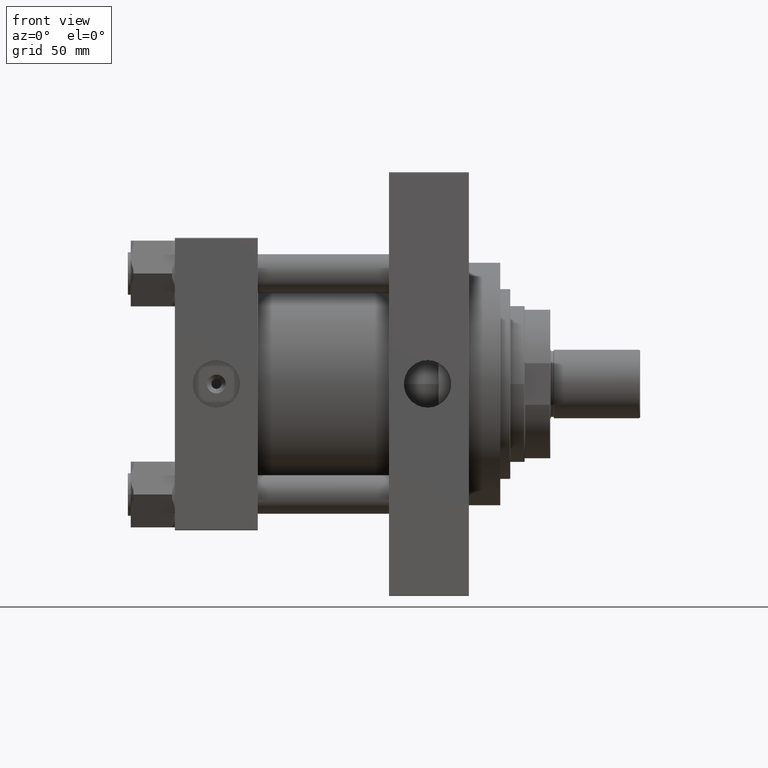
[diagram: clean part render]
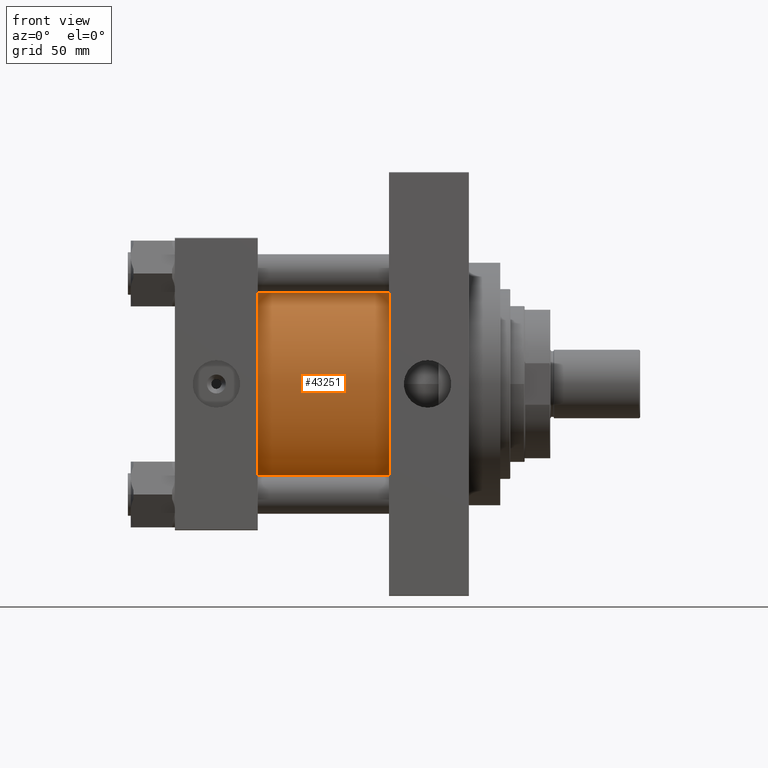
[diagram: same view with one face highlighted and labeled with its STEP entity id]
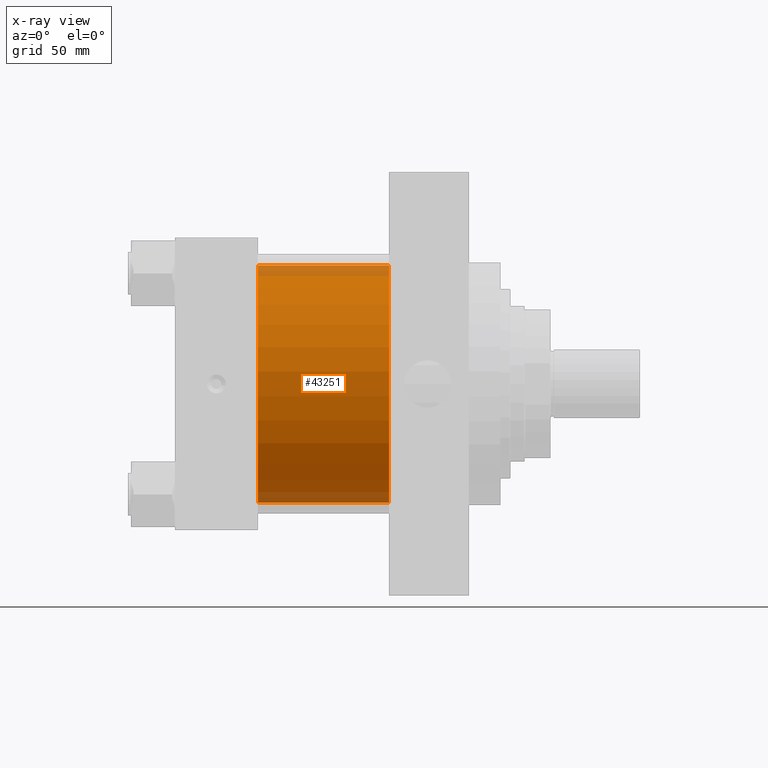
[diagram: x-ray of the same camera — body ghosted, the highlighted face saturated]
A machine part, front view. The second image highlights one B-rep face of the part: STEP entity #43251.
The next image is the same camera in x-ray: the body ghosted, the highlighted face saturated — about 9% of this face is hidden behind the body in this view.
In plain terms, the highlighted cylindrical surface (partial cylindrical patch) has radius 83 mm, axis along (-1, -0, -0).
Its self-contained STEP definition (entity closure, byte-faithful):
#1462 = CARTESIAN_POINT ( 'NONE',  ( 57.99999999999999289, -2.602085213965210642E-15, 83.00000000000000000 ) ) ;
#2006 = CARTESIAN_POINT ( 'NONE',  ( 150.0000000000000000, 7.562483218957820855E-15, -83.00000000000000000 ) ) ;
#2834 = DIRECTION ( 'NONE',  ( -1.000000000000000000, -0.000000000000000000, -0.000000000000000000 ) ) ;
#3535 = CARTESIAN_POINT ( 'NONE',  ( 150.0000000000000000, -2.602085213965210642E-15, 83.00000000000000000 ) ) ;
#3777 = DIRECTION ( 'NONE',  ( 0.000000000000000000, 0.000000000000000000, -1.000000000000000000 ) ) ;
#5824 = CYLINDRICAL_SURFACE ( 'NONE', #9657, 83.00000000000000000 ) ;
#8495 = VERTEX_POINT ( 'NONE', #39975 ) ;
#8858 = AXIS2_PLACEMENT_3D ( 'NONE', #48224, #28847, #33167 ) ;
#9657 = AXIS2_PLACEMENT_3D ( 'NONE', #21583, #21339, #17516 ) ;
#9763 = VERTEX_POINT ( 'NONE', #1462 ) ;
#9796 = ORIENTED_EDGE ( 'NONE', *, *, #12518, .F. ) ;
#11463 = EDGE_CURVE ( 'NONE', #17114, #9763, #38464, .T. ) ;
#12518 = EDGE_CURVE ( 'NONE', #17114, #8495, #34720, .T. ) ;
#12809 = AXIS2_PLACEMENT_3D ( 'NONE', #44830, #27455, #3777 ) ;
#13220 = DIRECTION ( 'NONE',  ( -1.000000000000000000, -0.000000000000000000, -0.000000000000000000 ) ) ;
#13873 = VECTOR ( 'NONE', #13220, 1000.000000000000000 ) ;
#14028 = VERTEX_POINT ( 'NONE', #47218 ) ;
#15302 = CIRCLE ( 'NONE', #8858, 83.00000000000000000 ) ;
#17033 = LINE ( 'NONE', #2006, #13873 ) ;
#17114 = VERTEX_POINT ( 'NONE', #3535 ) ;
#17516 = DIRECTION ( 'NONE',  ( 0.000000000000000000, 0.000000000000000000, 1.000000000000000000 ) ) ;
#21339 = DIRECTION ( 'NONE',  ( -1.000000000000000000, -0.000000000000000000, -0.000000000000000000 ) ) ;
#21583 = CARTESIAN_POINT ( 'NONE',  ( 150.0000000000000000, -2.602085213965210642E-15, 0.000000000000000000 ) ) ;
#21869 = EDGE_LOOP ( 'NONE', ( #27644, #9796, #46013, #40220 ) ) ;
#26496 = CARTESIAN_POINT ( 'NONE',  ( 150.0000000000000000, -2.602085213965210642E-15, 83.00000000000000000 ) ) ;
#27455 = DIRECTION ( 'NONE',  ( 1.000000000000000000, 0.000000000000000000, 0.000000000000000000 ) ) ;
#27644 = ORIENTED_EDGE ( 'NONE', *, *, #49888, .F. ) ;
#28847 = DIRECTION ( 'NONE',  ( 1.000000000000000000, -0.000000000000000000, -0.000000000000000000 ) ) ;
#33167 = DIRECTION ( 'NONE',  ( 0.000000000000000000, 0.000000000000000000, 1.000000000000000000 ) ) ;
#34720 = CIRCLE ( 'NONE', #12809, 83.00000000000000000 ) ;
#38464 = LINE ( 'NONE', #26496, #42802 ) ;
#39975 = CARTESIAN_POINT ( 'NONE',  ( 150.0000000000000000, 7.562483218957820855E-15, -83.00000000000000000 ) ) ;
#40220 = ORIENTED_EDGE ( 'NONE', *, *, #43390, .T. ) ;
#40692 = FACE_OUTER_BOUND ( 'NONE', #21869, .T. ) ;
#42802 = VECTOR ( 'NONE', #2834, 1000.000000000000000 ) ;
#43251 = ADVANCED_FACE ( 'NONE', ( #40692 ), #5824, .T. ) ;
#43390 = EDGE_CURVE ( 'NONE', #9763, #14028, #15302, .T. ) ;
#44830 = CARTESIAN_POINT ( 'NONE',  ( 150.0000000000000000, -2.602085213965210642E-15, 0.000000000000000000 ) ) ;
#46013 = ORIENTED_EDGE ( 'NONE', *, *, #11463, .T. ) ;
#47218 = CARTESIAN_POINT ( 'NONE',  ( 57.99999999999999289, 7.562483218957820855E-15, -83.00000000000000000 ) ) ;
#48224 = CARTESIAN_POINT ( 'NONE',  ( 57.99999999999999289, -2.602085213965210642E-15, 0.000000000000000000 ) ) ;
#49888 = EDGE_CURVE ( 'NONE', #8495, #14028, #17033, .T. ) ;